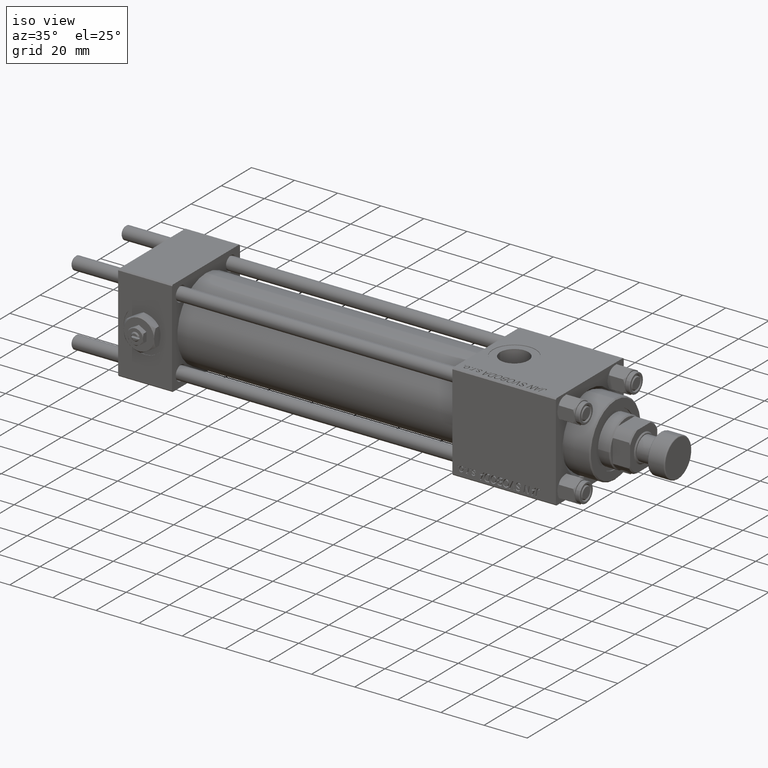
[diagram: clean part render]
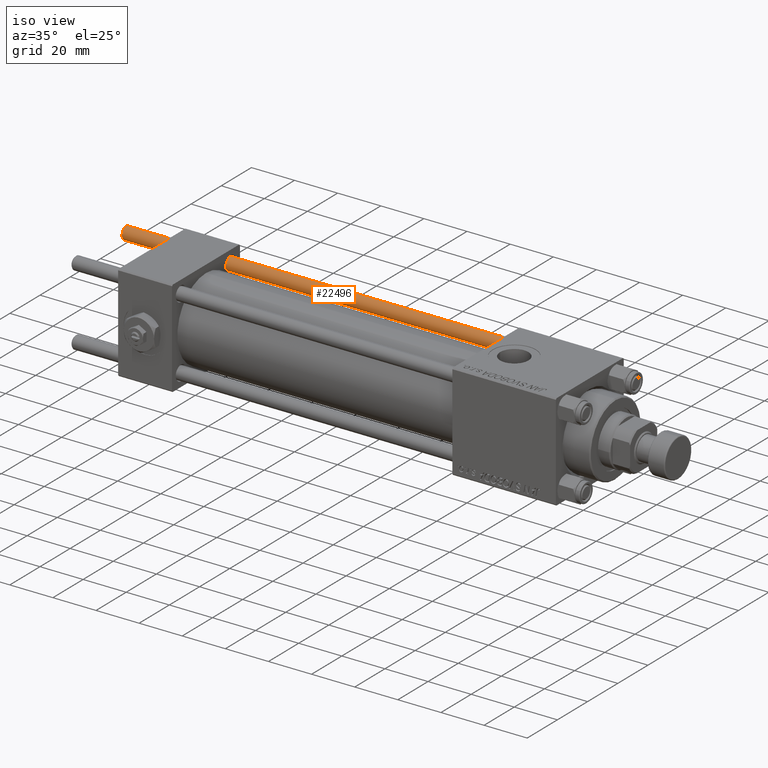
[diagram: same view with one face highlighted and labeled with its STEP entity id]
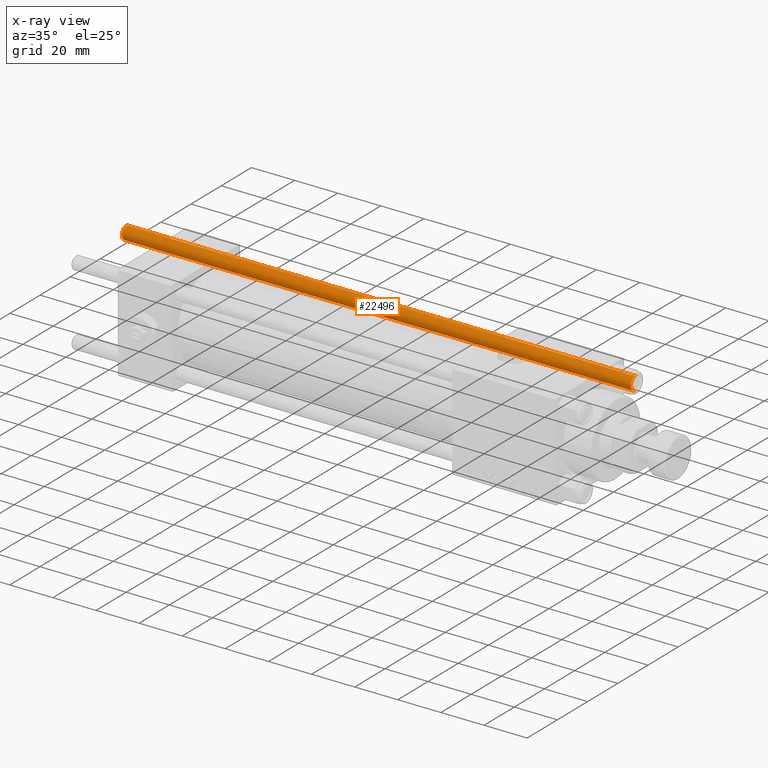
[diagram: x-ray of the same camera — body ghosted, the highlighted face saturated]
A machine part, iso view. The second image highlights one B-rep face of the part: STEP entity #22496.
The next image is the same camera in x-ray: the body ghosted, the highlighted face saturated — about 0% of this face is hidden behind the body in this view.
In plain terms, the highlighted cylindrical surface (edge-blend (fillet) strip) has radius 3 mm, axis along (-1, -0, -0).
Its self-contained STEP definition (entity closure, byte-faithful):
#521 = DIRECTION ( 'NONE',  ( 1.000000000000000000, 0.000000000000000000, 0.000000000000000000 ) ) ;
#4487 = VECTOR ( 'NONE', #25435, 1000.000000000000000 ) ;
#4826 = VECTOR ( 'NONE', #39561, 1000.000000000000000 ) ;
#5125 = VERTEX_POINT ( 'NONE', #39139 ) ;
#5952 = FACE_OUTER_BOUND ( 'NONE', #41230, .T. ) ;
#6927 = AXIS2_PLACEMENT_3D ( 'NONE', #18081, #24555, #521 ) ;
#9072 = CARTESIAN_POINT ( 'NONE',  ( 3.000000000000000444, 3.673940397442060361E-16, 236.5000000000000568 ) ) ;
#9128 = EDGE_CURVE ( 'NONE', #18820, #24976, #19312, .T. ) ;
#10577 = EDGE_CURVE ( 'NONE', #5125, #18820, #31595, .T. ) ;
#11904 = AXIS2_PLACEMENT_3D ( 'NONE', #13895, #18360, #34753 ) ;
#12461 = CARTESIAN_POINT ( 'NONE',  ( 0.000000000000000000, 0.000000000000000000, 0.5000000000000004441 ) ) ;
#12789 = ORIENTED_EDGE ( 'NONE', *, *, #10577, .T. ) ;
#13895 = CARTESIAN_POINT ( 'NONE',  ( 0.000000000000000000, 0.000000000000000000, 237.0000000000000000 ) ) ;
#14969 = CARTESIAN_POINT ( 'NONE',  ( -3.000000000000000444, 0.000000000000000000, 0.5000000000000004441 ) ) ;
#15613 = CARTESIAN_POINT ( 'NONE',  ( 3.000000000000000444, 3.673940397442060361E-16, 0.5000000000000004441 ) ) ;
#18081 = CARTESIAN_POINT ( 'NONE',  ( 0.000000000000000000, 0.000000000000000000, 236.5000000000000568 ) ) ;
#18360 = DIRECTION ( 'NONE',  ( -0.000000000000000000, -0.000000000000000000, -1.000000000000000000 ) ) ;
#18820 = VERTEX_POINT ( 'NONE', #14969 ) ;
#19312 = CIRCLE ( 'NONE', #48010, 3.000000000000000444 ) ;
#20634 = DIRECTION ( 'NONE',  ( 1.000000000000000000, 0.000000000000000000, 0.000000000000000000 ) ) ;
#20956 = LINE ( 'NONE', #25173, #4487 ) ;
#21644 = ORIENTED_EDGE ( 'NONE', *, *, #9128, .T. ) ;
#22496 = ADVANCED_FACE ( 'NONE', ( #5952 ), #38725, .T. ) ;
#24555 = DIRECTION ( 'NONE',  ( 0.000000000000000000, 0.000000000000000000, -1.000000000000000000 ) ) ;
#24590 = DIRECTION ( 'NONE',  ( -0.000000000000000000, -0.000000000000000000, 1.000000000000000000 ) ) ;
#24632 = CIRCLE ( 'NONE', #6927, 3.000000000000000444 ) ;
#24976 = VERTEX_POINT ( 'NONE', #15613 ) ;
#25173 = CARTESIAN_POINT ( 'NONE',  ( 3.000000000000000444, 3.673940397442060361E-16, 237.0000000000000000 ) ) ;
#25435 = DIRECTION ( 'NONE',  ( -0.000000000000000000, -0.000000000000000000, -1.000000000000000000 ) ) ;
#26107 = ORIENTED_EDGE ( 'NONE', *, *, #28402, .F. ) ;
#28402 = EDGE_CURVE ( 'NONE', #50985, #24976, #20956, .T. ) ;
#31595 = LINE ( 'NONE', #51960, #4826 ) ;
#34753 = DIRECTION ( 'NONE',  ( -1.000000000000000000, 0.000000000000000000, 0.000000000000000000 ) ) ;
#38192 = ORIENTED_EDGE ( 'NONE', *, *, #44007, .T. ) ;
#38725 = CYLINDRICAL_SURFACE ( 'NONE', #11904, 3.000000000000000444 ) ;
#39139 = CARTESIAN_POINT ( 'NONE',  ( -3.000000000000000444, 0.000000000000000000, 236.5000000000000568 ) ) ;
#39561 = DIRECTION ( 'NONE',  ( -0.000000000000000000, -0.000000000000000000, -1.000000000000000000 ) ) ;
#41230 = EDGE_LOOP ( 'NONE', ( #26107, #38192, #12789, #21644 ) ) ;
#44007 = EDGE_CURVE ( 'NONE', #50985, #5125, #24632, .T. ) ;
#48010 = AXIS2_PLACEMENT_3D ( 'NONE', #12461, #24590, #20634 ) ;
#50985 = VERTEX_POINT ( 'NONE', #9072 ) ;
#51960 = CARTESIAN_POINT ( 'NONE',  ( -3.000000000000000444, 0.000000000000000000, 237.0000000000000000 ) ) ;